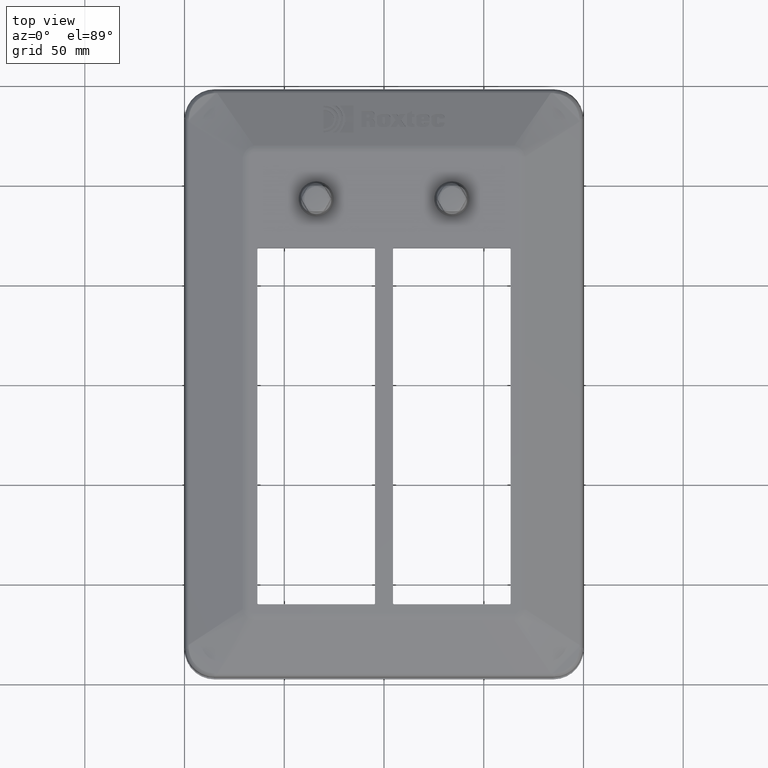
[diagram: clean part render]
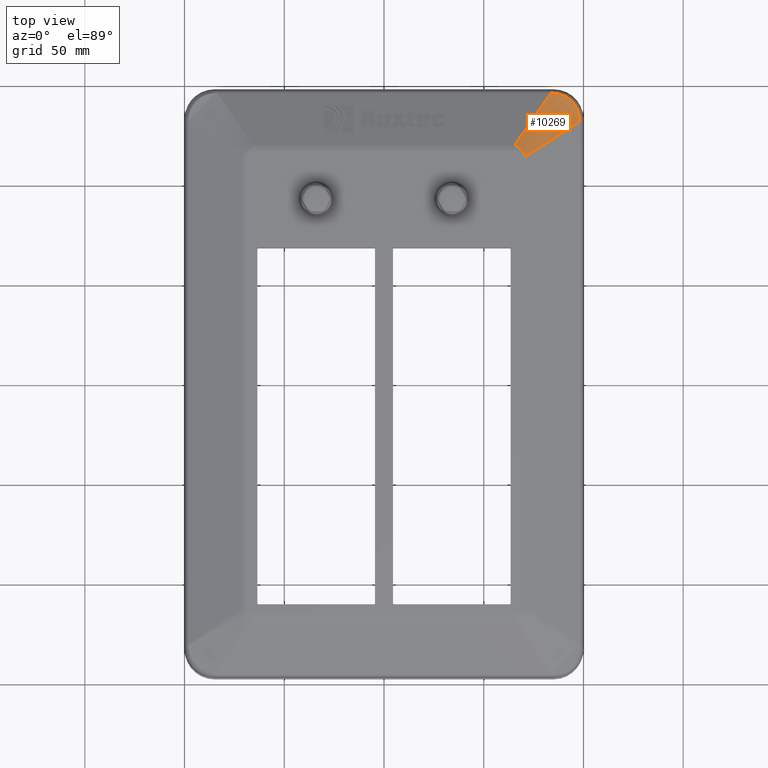
[diagram: same view with one face highlighted and labeled with its STEP entity id]
A machine part, top view. The second image highlights one B-rep face of the part: STEP entity #10269.
In plain terms, the highlighted face is a freeform B-spline surface patch.
Its self-contained STEP definition (entity closure, byte-faithful):
#94=(
BOUNDED_SURFACE()
B_SPLINE_SURFACE(1,2,((#19439,#19440,#19441),(#19442,#19443,#19444)),
 .UNSPECIFIED.,.F.,.F.,.F.)
B_SPLINE_SURFACE_WITH_KNOTS((2,2),(3,3),(-1.81146715291681,0.737740343756106),
(-2.18991141262071,-0.979357212272894),.UNSPECIFIED.)
GEOMETRIC_REPRESENTATION_ITEM()
RATIONAL_B_SPLINE_SURFACE(((1.,0.822344461986445,1.),(1.,0.822344461986445,
1.)))
REPRESENTATION_ITEM('')
SURFACE()
);
#433=B_SPLINE_CURVE_WITH_KNOTS('',3,(#18135,#18136,#18137,#18138),
 .UNSPECIFIED.,.F.,.F.,(4,4),(0.,0.128903528561642),.UNSPECIFIED.);
#447=B_SPLINE_CURVE_WITH_KNOTS('',3,(#18537,#18538,#18539,#18540),
 .UNSPECIFIED.,.F.,.F.,(4,4),(-0.134962525242046,0.),.UNSPECIFIED.);
#449=B_SPLINE_CURVE_WITH_KNOTS('',3,(#18582,#18583,#18584,#18585,#18586,
#18587,#18588),.UNSPECIFIED.,.F.,.F.,(4,1,1,1,4),(-1.85159710737003,-1.32256936240716,
-1.05805548992573,-0.529027744962864,0.),.UNSPECIFIED.);
#453=B_SPLINE_CURVE_WITH_KNOTS('',3,(#18937,#18938,#18939,#18940,#18941,
#18942,#18943,#18944,#18945,#18946,#18947,#18948,#18949,#18950,#18951,#18952,
#18953,#18954,#18955,#18956,#18957,#18958,#18959,#18960,#18961,#18962,#18963,
#18964,#18965,#18966,#18967,#18968,#18969,#18970,#18971,#18972,#18973,#18974,
#18975,#18976,#18977,#18978,#18979,#18980,#18981,#18982,#18983,#18984,#18985,
#18986,#18987,#18988,#18989,#18990,#18991,#18992,#18993,#18994,#18995,#18996,
#18997,#18998,#18999,#19000,#19001,#19002,#19003,#19004,#19005,#19006,#19007,
#19008,#19009,#19010,#19011,#19012,#19013,#19014,#19015,#19016,#19017,#19018,
#19019,#19020,#19021,#19022,#19023,#19024,#19025,#19026,#19027,#19028,#19029,
#19030,#19031,#19032,#19033,#19034,#19035,#19036,#19037,#19038,#19039,#19040,
#19041,#19042,#19043,#19044,#19045,#19046,#19047,#19048,#19049,#19050,#19051,
#19052,#19053,#19054,#19055,#19056,#19057,#19058,#19059,#19060,#19061,#19062,
#19063,#19064,#19065,#19066,#19067,#19068,#19069,#19070,#19071,#19072),
 .UNSPECIFIED.,.F.,.F.,(4,3,3,3,3,3,3,3,3,3,3,3,3,3,3,3,3,3,3,3,3,3,3,3,
3,3,3,3,3,3,3,3,3,3,3,3,3,3,3,3,3,3,3,3,3,4),(-0.334122223181232,-0.331446489260465,
-0.328592693919026,-0.32562541391967,-0.322507223909241,-0.322189286639045,
-0.317461778708265,-0.312506318048283,-0.310256350096858,-0.30385660623528,
-0.297257035236184,-0.290344135193147,-0.286390477012484,-0.276474286118371,
-0.266036342020042,-0.255265490080367,-0.243950348932498,-0.238658730843737,
-0.223221753168411,-0.207020104075248,-0.189373034963074,-0.170977708107426,
-0.152516645993671,-0.143195238506242,-0.127143606399002,-0.111303549368249,
-0.0968239959967434,-0.0954634923374948,-0.0842222846890478,-0.0736336722092746,
-0.0633818873440155,-0.0535895003472059,-0.0477317461687474,-0.041263328097835,
-0.0349952738407994,-0.0290481119464843,-0.0238658730843737,-0.0190646492579273,
-0.0144959513870516,-0.0119329365421869,-0.00934236162018659,-0.00693802018591702,
-0.00463746347132405,-0.00243480190575841,-0.000353108189794656,0.),
 .UNSPECIFIED.);
#1450=FACE_OUTER_BOUND('',#2099,.T.);
#2099=EDGE_LOOP('',(#8742,#8743,#8744,#8745,#8746,#8747));
#2640=LINE('',#17807,#3280);
#2733=LINE('',#18068,#3373);
#3280=VECTOR('',#13196,10.);
#3373=VECTOR('',#13451,10.);
#4597=VERTEX_POINT('',#17804);
#4598=VERTEX_POINT('',#17806);
#4674=VERTEX_POINT('',#18059);
#4677=VERTEX_POINT('',#18067);
#4687=VERTEX_POINT('',#18133);
#4699=VERTEX_POINT('',#18536);
#5893=EDGE_CURVE('',#4597,#4598,#2640,.T.);
#6018=EDGE_CURVE('',#4674,#4677,#2733,.T.);
#6036=EDGE_CURVE('',#4687,#4677,#433,.T.);
#6062=EDGE_CURVE('',#4598,#4699,#447,.T.);
#6065=EDGE_CURVE('',#4699,#4687,#449,.T.);
#6074=EDGE_CURVE('',#4674,#4597,#453,.T.);
#8742=ORIENTED_EDGE('',*,*,#6062,.F.);
#8743=ORIENTED_EDGE('',*,*,#5893,.F.);
#8744=ORIENTED_EDGE('',*,*,#6074,.F.);
#8745=ORIENTED_EDGE('',*,*,#6018,.T.);
#8746=ORIENTED_EDGE('',*,*,#6036,.F.);
#8747=ORIENTED_EDGE('',*,*,#6065,.F.);
#10269=ADVANCED_FACE('',(#1450),#94,.F.);
#13196=DIRECTION('',(0.530161340264172,0.7683497684988,-0.35856322529944));
#13451=DIRECTION('',(0.782692255466614,0.50989723483167,-0.356928064382169));
#17804=CARTESIAN_POINT('',(65.4097194297703,119.108289028653,2.44946511996213));
#17806=CARTESIAN_POINT('',(83.6508749127501,145.544746250362,-9.8875482501691));
#17807=CARTESIAN_POINT('',(64.3,117.5,3.2));
#18059=CARTESIAN_POINT('',(70.8813428143075,113.530190758506,2.4788664690455));
#18067=CARTESIAN_POINT('',(98.0219710076899,131.211381763967,-9.8979672347771));
#18068=CARTESIAN_POINT('',(69.3,112.5,3.2));
#18133=CARTESIAN_POINT('',(97.9582955140178,132.615667401337,-9.9001815337796));
#18135=CARTESIAN_POINT('Ctrl Pts',(97.9582955140178,132.615667401337,-9.9001815337796));
#18136=CARTESIAN_POINT('Ctrl Pts',(97.9781071497197,132.151076652013,-9.8891622371244));
#18137=CARTESIAN_POINT('Ctrl Pts',(97.9992112582556,131.683261735069,-9.8875881959472));
#18138=CARTESIAN_POINT('Ctrl Pts',(98.0219710076899,131.211381763967,-9.8979672347771));
#18536=CARTESIAN_POINT('',(85.1230808701008,145.473451194998,-9.8894764088661));
#18537=CARTESIAN_POINT('Ctrl Pts',(83.6508749127502,145.544746250362,-9.8875482501691));
#18538=CARTESIAN_POINT('Ctrl Pts',(84.1461056073526,145.519047496624,-9.8755554984247));
#18539=CARTESIAN_POINT('Ctrl Pts',(84.6364662250696,145.495451538854,-9.8772568537101));
#18540=CARTESIAN_POINT('Ctrl Pts',(85.1230808701008,145.473451194998,-9.8894764088661));
#18582=CARTESIAN_POINT('Ctrl Pts',(85.1230808701008,145.473451194998,-9.8894764088661));
#18583=CARTESIAN_POINT('Ctrl Pts',(87.0305188634701,145.387213979965,-9.9373747694791));
#18584=CARTESIAN_POINT('Ctrl Pts',(89.8535441967805,144.652585305343,-9.9835339459534));
#18585=CARTESIAN_POINT('Ctrl Pts',(93.8668984128163,142.067522691194,-10.0144066959491));
#18586=CARTESIAN_POINT('Ctrl Pts',(96.9084176438882,138.29096092913,-10.0025799891044));
#18587=CARTESIAN_POINT('Ctrl Pts',(97.8769873831146,134.522375458048,-9.9454053823377));
#18588=CARTESIAN_POINT('Ctrl Pts',(97.9582955140178,132.615667401337,-9.9001815337796));
#18937=CARTESIAN_POINT('Ctrl Pts',(70.8813428143071,113.530190758506,2.47886646904564));
#18938=CARTESIAN_POINT('Ctrl Pts',(70.8658338591159,113.567866859191,2.485938956755));
#18939=CARTESIAN_POINT('Ctrl Pts',(70.8510358718114,113.603684122058,2.49240640365766));
#18940=CARTESIAN_POINT('Ctrl Pts',(70.8368714197833,113.637902925632,2.49838440173741));
#18941=CARTESIAN_POINT('Ctrl Pts',(70.821764369378,113.674398879685,2.50476021621534));
#18942=CARTESIAN_POINT('Ctrl Pts',(70.8073778735213,113.70907672002,2.51057934865444));
#18943=CARTESIAN_POINT('Ctrl Pts',(70.7935730312404,113.742289869282,2.51597040334167));
#18944=CARTESIAN_POINT('Ctrl Pts',(70.7792192225425,113.776823779998,2.52157583990418));
#18945=CARTESIAN_POINT('Ctrl Pts',(70.7654939411058,113.809774516679,2.5267184841299));
#18946=CARTESIAN_POINT('Ctrl Pts',(70.7521975755468,113.841574466068,2.53153012245076));
#18947=CARTESIAN_POINT('Ctrl Pts',(70.7382249830479,113.874991698193,2.53658647121095));
#18948=CARTESIAN_POINT('Ctrl Pts',(70.7247258511217,113.907138339793,2.5412773251994));
#18949=CARTESIAN_POINT('Ctrl Pts',(70.7114253960331,113.938549830538,2.54574143073118));
#18950=CARTESIAN_POINT('Ctrl Pts',(70.710069253409,113.941752612789,2.54619660040393));
#18951=CARTESIAN_POINT('Ctrl Pts',(70.7087151423681,113.944947778107,2.54664940084407));
#18952=CARTESIAN_POINT('Ctrl Pts',(70.7073627490357,113.948135911237,2.54709997108936));
#18953=CARTESIAN_POINT('Ctrl Pts',(70.6872535929107,113.995541252077,2.55379963988467));
#18954=CARTESIAN_POINT('Ctrl Pts',(70.6676150544695,114.041293017263,2.55997348908925));
#18955=CARTESIAN_POINT('Ctrl Pts',(70.648364109712,114.085648824037,2.56572649447708));
#18956=CARTESIAN_POINT('Ctrl Pts',(70.6281849157667,114.132143395538,2.57175690041051));
#18957=CARTESIAN_POINT('Ctrl Pts',(70.6084314637337,114.177104351114,2.57732499484528));
#18958=CARTESIAN_POINT('Ctrl Pts',(70.588964342464,114.220863566417,2.58253856423407));
#18959=CARTESIAN_POINT('Ctrl Pts',(70.5801255276759,114.240731917468,2.58490572338277));
#18960=CARTESIAN_POINT('Ctrl Pts',(70.5713451735443,114.26035297422,2.58719961449322));
#18961=CARTESIAN_POINT('Ctrl Pts',(70.5626075709478,114.279759853484,2.58942942189612));
#18962=CARTESIAN_POINT('Ctrl Pts',(70.537754586466,114.334960220388,2.59577182167574));
#18963=CARTESIAN_POINT('Ctrl Pts',(70.5132432344235,114.388432872948,2.60159868336507));
#18964=CARTESIAN_POINT('Ctrl Pts',(70.4890090288802,114.44041383877,2.60700921522533));
#18965=CARTESIAN_POINT('Ctrl Pts',(70.4640181286897,114.494017870738,2.61258868683028));
#18966=CARTESIAN_POINT('Ctrl Pts',(70.4393217242914,114.546035913169,2.61772551244151));
#18967=CARTESIAN_POINT('Ctrl Pts',(70.4148054323504,114.596761178879,2.62251451317024));
#18968=CARTESIAN_POINT('Ctrl Pts',(70.389125175916,114.649894737341,2.62753088216578));
#18969=CARTESIAN_POINT('Ctrl Pts',(70.363642412997,114.701610083106,2.63216574523413));
#18970=CARTESIAN_POINT('Ctrl Pts',(70.338181176557,114.752277216712,2.63651121713528));
#18971=CARTESIAN_POINT('Ctrl Pts',(70.3236192669223,114.781255001147,2.63899649978421));
#18972=CARTESIAN_POINT('Ctrl Pts',(70.3090636056496,114.809890493343,2.64138680675059));
#18973=CARTESIAN_POINT('Ctrl Pts',(70.2944754391424,114.838256982469,2.64369682860716));
#18974=CARTESIAN_POINT('Ctrl Pts',(70.2578867819367,114.909403123161,2.64949060658509));
#18975=CARTESIAN_POINT('Ctrl Pts',(70.2211160156963,114.978834139463,2.65477374619971));
#18976=CARTESIAN_POINT('Ctrl Pts',(70.1841617456726,115.046688499815,2.65962913972779));
#18977=CARTESIAN_POINT('Ctrl Pts',(70.1452630789546,115.118113105064,2.66474000606372));
#18978=CARTESIAN_POINT('Ctrl Pts',(70.1061610526405,115.187790974126,2.66937713826356));
#18979=CARTESIAN_POINT('Ctrl Pts',(70.066809395641,115.255919088511,2.67362336294845));
#18980=CARTESIAN_POINT('Ctrl Pts',(70.0262026566961,115.326220081317,2.6780050167447));
#18981=CARTESIAN_POINT('Ctrl Pts',(69.9853298772602,115.394871252888,2.68197059178158));
#18982=CARTESIAN_POINT('Ctrl Pts',(69.9440962117975,115.462121253649,2.68559387318019));
#18983=CARTESIAN_POINT('Ctrl Pts',(69.9007788635164,115.532769634582,2.68940025179102));
#18984=CARTESIAN_POINT('Ctrl Pts',(69.8570630761303,115.601872001481,2.69282910543506));
#18985=CARTESIAN_POINT('Ctrl Pts',(69.8127939781845,115.669746150172,2.69594405982346));
#18986=CARTESIAN_POINT('Ctrl Pts',(69.7920911732966,115.701488049656,2.69740079366106));
#18987=CARTESIAN_POINT('Ctrl Pts',(69.7712667521281,115.732961706762,2.69878855075397));
#18988=CARTESIAN_POINT('Ctrl Pts',(69.7503019168943,115.764201338102,2.70011209667187));
#18989=CARTESIAN_POINT('Ctrl Pts',(69.6891422322681,115.855335181001,2.7039732122029));
#18990=CARTESIAN_POINT('Ctrl Pts',(69.6268390420303,115.944420469727,2.70728219704422));
#18991=CARTESIAN_POINT('Ctrl Pts',(69.5633753167641,116.031560199317,2.71011585084378));
#18992=CARTESIAN_POINT('Ctrl Pts',(69.4967679128712,116.123016399527,2.71308986981807));
#18993=CARTESIAN_POINT('Ctrl Pts',(69.4288818618469,116.212330066566,2.71554061844217));
#18994=CARTESIAN_POINT('Ctrl Pts',(69.3596520907404,116.299650242127,2.71753491703113));
#18995=CARTESIAN_POINT('Ctrl Pts',(69.2842460287828,116.39476063269,2.71970713572487));
#18996=CARTESIAN_POINT('Ctrl Pts',(69.2072455137302,116.487506708937,2.72133840946962));
#18997=CARTESIAN_POINT('Ctrl Pts',(69.1285179866032,116.57810573458,2.72248214387555));
#18998=CARTESIAN_POINT('Ctrl Pts',(69.0464523141205,116.672546271924,2.723674374047));
#18999=CARTESIAN_POINT('Ctrl Pts',(68.9625091111328,116.764655104115,2.72433721676247));
#19000=CARTESIAN_POINT('Ctrl Pts',(68.8764980373608,116.854687676379,2.7244895064092));
#19001=CARTESIAN_POINT('Ctrl Pts',(68.7901796050854,116.945041977875,2.72464234025933));
#19002=CARTESIAN_POINT('Ctrl Pts',(68.70177717436,117.033306560369,2.72428101445914));
#19003=CARTESIAN_POINT('Ctrl Pts',(68.6110765275053,117.119728203092,2.72338063140165));
#19004=CARTESIAN_POINT('Ctrl Pts',(68.5652797210433,117.163364443661,2.72292600764697));
#19005=CARTESIAN_POINT('Ctrl Pts',(68.5188967700838,117.206530520331,2.72233325329653));
#19006=CARTESIAN_POINT('Ctrl Pts',(68.4718996539638,117.249255366031,2.72159490665891));
#19007=CARTESIAN_POINT('Ctrl Pts',(68.3909697708879,117.322828322257,2.7203234604089));
#19008=CARTESIAN_POINT('Ctrl Pts',(68.3082774403408,117.39504621402,2.71862160998599));
#19009=CARTESIAN_POINT('Ctrl Pts',(68.2235755636742,117.466042070083,2.71645731708766));
#19010=CARTESIAN_POINT('Ctrl Pts',(68.1399901346009,117.536102136341,2.71432155153361));
#19011=CARTESIAN_POINT('Ctrl Pts',(68.0544469655435,117.604972894544,2.71173529399875));
#19012=CARTESIAN_POINT('Ctrl Pts',(67.9667269834827,117.672741291186,2.7086395095577));
#19013=CARTESIAN_POINT('Ctrl Pts',(67.8865412771099,117.734689055275,2.70580962226916));
#19014=CARTESIAN_POINT('Ctrl Pts',(67.8045363256774,117.795715689169,2.70255356541478));
#19015=CARTESIAN_POINT('Ctrl Pts',(67.7205675101105,117.855849220556,2.69880703019953));
#19016=CARTESIAN_POINT('Ctrl Pts',(67.7126777722222,117.861499387201,2.69845500450239));
#19017=CARTESIAN_POINT('Ctrl Pts',(67.7047707160968,117.867141638726,2.69809863592618));
#19018=CARTESIAN_POINT('Ctrl Pts',(67.6968462346485,117.872775979037,2.69773786335538));
#19019=CARTESIAN_POINT('Ctrl Pts',(67.6313699377923,117.919329907032,2.69475696774764));
#19020=CARTESIAN_POINT('Ctrl Pts',(67.5647445014403,117.965300536459,2.69148467718762));
#19021=CARTESIAN_POINT('Ctrl Pts',(67.4966437181166,118.010881686618,2.68785966719173));
#19022=CARTESIAN_POINT('Ctrl Pts',(67.4324964461566,118.05381667639,2.68444510291338));
#19023=CARTESIAN_POINT('Ctrl Pts',(67.367039879873,118.096406192827,2.68071734267579));
#19024=CARTESIAN_POINT('Ctrl Pts',(67.3000221333445,118.138775883697,2.6766059260952));
#19025=CARTESIAN_POINT('Ctrl Pts',(67.2351362457102,118.17979777929,2.67262529517154));
#19026=CARTESIAN_POINT('Ctrl Pts',(67.1687866027594,118.220613835224,2.66828488993948));
#19027=CARTESIAN_POINT('Ctrl Pts',(67.1007689853929,118.261300458511,2.66350475807389));
#19028=CARTESIAN_POINT('Ctrl Pts',(67.0357993395598,118.300163853134,2.65893883109249));
#19029=CARTESIAN_POINT('Ctrl Pts',(66.9693076479624,118.338909246849,2.65397154043273));
#19030=CARTESIAN_POINT('Ctrl Pts',(66.9011422185691,118.377566241152,2.64852056987238));
#19031=CARTESIAN_POINT('Ctrl Pts',(66.8603660187533,118.400690650958,2.645259828075));
#19032=CARTESIAN_POINT('Ctrl Pts',(66.8189914118775,118.4237827109,2.64182577386871));
#19033=CARTESIAN_POINT('Ctrl Pts',(66.7769912546415,118.446841739113,2.63819884333111));
#19034=CARTESIAN_POINT('Ctrl Pts',(66.7306126310649,118.472304643538,2.63419380960715));
#19035=CARTESIAN_POINT('Ctrl Pts',(66.6834866924504,118.497712372064,2.62995943544769));
#19036=CARTESIAN_POINT('Ctrl Pts',(66.6352100308416,118.523292207806,2.62541227857876));
#19037=CARTESIAN_POINT('Ctrl Pts',(66.5884287728902,118.548079690088,2.62100597310232));
#19038=CARTESIAN_POINT('Ctrl Pts',(66.540566725387,118.573028985807,2.61630588877209));
#19039=CARTESIAN_POINT('Ctrl Pts',(66.4912812052776,118.598309627533,2.61122054891435));
#19040=CARTESIAN_POINT('Ctrl Pts',(66.4445188520631,118.622296029527,2.60639555248302));
#19041=CARTESIAN_POINT('Ctrl Pts',(66.3964748880984,118.646580798019,2.60122362933918));
#19042=CARTESIAN_POINT('Ctrl Pts',(66.3468816735579,118.67127283728,2.59561377409075));
#19043=CARTESIAN_POINT('Ctrl Pts',(66.303667130511,118.692788990314,2.5907254575465));
#19044=CARTESIAN_POINT('Ctrl Pts',(66.2592764276208,118.714614035853,2.58550442193098));
#19045=CARTESIAN_POINT('Ctrl Pts',(66.2135511305793,118.736794715004,2.57988268422913));
#19046=CARTESIAN_POINT('Ctrl Pts',(66.171187705915,118.75734459857,2.57467427494536));
#19047=CARTESIAN_POINT('Ctrl Pts',(66.1276698925313,118.778208934377,2.56911989074233));
#19048=CARTESIAN_POINT('Ctrl Pts',(66.0826829498423,118.799539377789,2.56311255542357));
#19049=CARTESIAN_POINT('Ctrl Pts',(66.0398747499521,118.819836775894,2.55739615871461));
#19050=CARTESIAN_POINT('Ctrl Pts',(65.9957361157982,118.840556328065,2.55126953745353));
#19051=CARTESIAN_POINT('Ctrl Pts',(65.9500229445684,118.86179220579,2.54462958308538));
#19052=CARTESIAN_POINT('Ctrl Pts',(65.9243781022568,118.873705418567,2.54090460452567));
#19053=CARTESIAN_POINT('Ctrl Pts',(65.8982382337828,118.885780455346,2.53701787918225));
#19054=CARTESIAN_POINT('Ctrl Pts',(65.8715646023506,118.898028291712,2.53294973308497));
#19055=CARTESIAN_POINT('Ctrl Pts',(65.8446041495831,118.910407828961,2.52883784224682));
#19056=CARTESIAN_POINT('Ctrl Pts',(65.8171660377304,118.922899093724,2.5245678194942));
#19057=CARTESIAN_POINT('Ctrl Pts',(65.7886229067391,118.935864616334,2.51998083342838));
#19058=CARTESIAN_POINT('Ctrl Pts',(65.762131709004,118.947898062255,2.51572360057909));
#19059=CARTESIAN_POINT('Ctrl Pts',(65.7346885857387,118.960340055192,2.51119327477351));
#19060=CARTESIAN_POINT('Ctrl Pts',(65.7058164812264,118.973446224342,2.50625144660748));
#19061=CARTESIAN_POINT('Ctrl Pts',(65.6781906569764,118.985986658498,2.50152293517075));
#19062=CARTESIAN_POINT('Ctrl Pts',(65.6492563028438,118.999135438072,2.49641769344435));
#19063=CARTESIAN_POINT('Ctrl Pts',(65.6186213256184,119.013081542396,2.49080383045103));
#19064=CARTESIAN_POINT('Ctrl Pts',(65.5892899527085,119.026434200816,2.48542885309389));
#19065=CARTESIAN_POINT('Ctrl Pts',(65.5583993336879,119.040518059039,2.47958762291777));
#19066=CARTESIAN_POINT('Ctrl Pts',(65.5256333097305,119.055462199999,2.47315427159396));
#19067=CARTESIAN_POINT('Ctrl Pts',(65.4946667612441,119.069585624502,2.46707423313834));
#19068=CARTESIAN_POINT('Ctrl Pts',(65.4620249488306,119.084477601883,2.46046528262366));
#19069=CARTESIAN_POINT('Ctrl Pts',(65.4274697529932,119.100210430156,2.45321225810185));
#19070=CARTESIAN_POINT('Ctrl Pts',(65.4216083130721,119.102879117903,2.45198196070517));
#19071=CARTESIAN_POINT('Ctrl Pts',(65.4156918943931,119.105571905863,2.45073311059749));
#19072=CARTESIAN_POINT('Ctrl Pts',(65.4097194297703,119.108289028653,2.44946511996214));
#19439=CARTESIAN_POINT('Ctrl Pts',(65.4097194297703,119.108289028653,2.44946511996214));
#19440=CARTESIAN_POINT('Ctrl Pts',(68.523235277319,116.740946525067,3.55422495496858));
#19441=CARTESIAN_POINT('Ctrl Pts',(70.850808377262,113.510298617109,2.49279096802388));
#19442=CARTESIAN_POINT('Ctrl Pts',(85.9602833498089,148.891714999723,-11.4494669998708));
#19443=CARTESIAN_POINT('Ctrl Pts',(94.6572261593548,142.27904836419,-8.3635559032888));
#19444=CARTESIAN_POINT('Ctrl Pts',(101.158805443488,133.254922113021,-11.3284454791148));